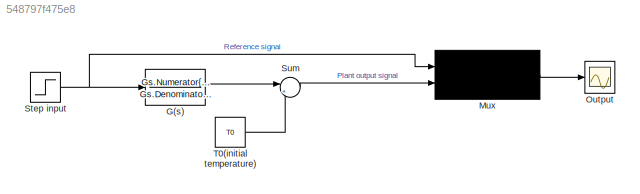
MODEL slx_548797f475e8
KIND model
CONFIG AbsTol = auto
CONFIG EnableMultiTasking = off
CONFIG FixedStep = auto
CONFIG MaxStep = auto
CONFIG MinStep = auto
CONFIG RelTol = 1e-3
CONFIG SampleTimeConstraint = Unconstrained
CONFIG Solver = VariableStepAuto
CONFIG SolverName = VariableStepAuto
CONFIG StartTime = 0.0
CONFIG StopTime = simulation_time
BLOCK [Constant]  T0(initial temperature)
  Value = T0
BLOCK [TransferFcn] G(s)
  Denominator = Gs.Denominator{1,1}
  Numerator = Gs.Numerator{1,1}
BLOCK [Mux] Mux
  DisplayOption = signals
  Inputs = 2
  Ports = [2, 1]
BLOCK [Scope] Output
  Floating = off
  NumInputPorts = 1
  Ports = [1]
  ScopeSpecificationString = Simulink.scopes.TimeScopeBlockCfg('CurrentConfiguration', extmgr.ConfigurationSet(extmgr.Configuration('Core','General UI',true),extmgr.Configuration('Core','Source UI',true),extmgr.Configuration('Sources','WiredSimulink',true),extmgr.Configuration('Visuals','Time Domain',true,'SerializedDisplays',{struct('MinYLimReal','-7.81245','MaxYLimReal','75.31204','YLabelReal','','MinYLimMag','0.00000','Max...<+1435ch>
BLOCK [Step] Step input
  After = 1*duty_cycle
  SampleTime = 0.1
  Time = 0
BLOCK [Sum] Sum
  IconShape = round
  InputSameDT = off
  Inputs = |++
  OutDataTypeStr = Inherit: Inherit via internal rule
  Ports = [2, 1]
  SaturateOnIntegerOverflow = off
LINE  T0(initial temperature):1 -> Sum:2
LINE G(s):1 -> Sum:1
LINE Mux:1 -> Output:1
NET Step input:1 -> G(s):1, Mux:1
LINE Sum:1 -> Mux:2
note: NET lines group one-source signal fan-out (src -> all destinations, sorted); 1:1 wires keep LINE
